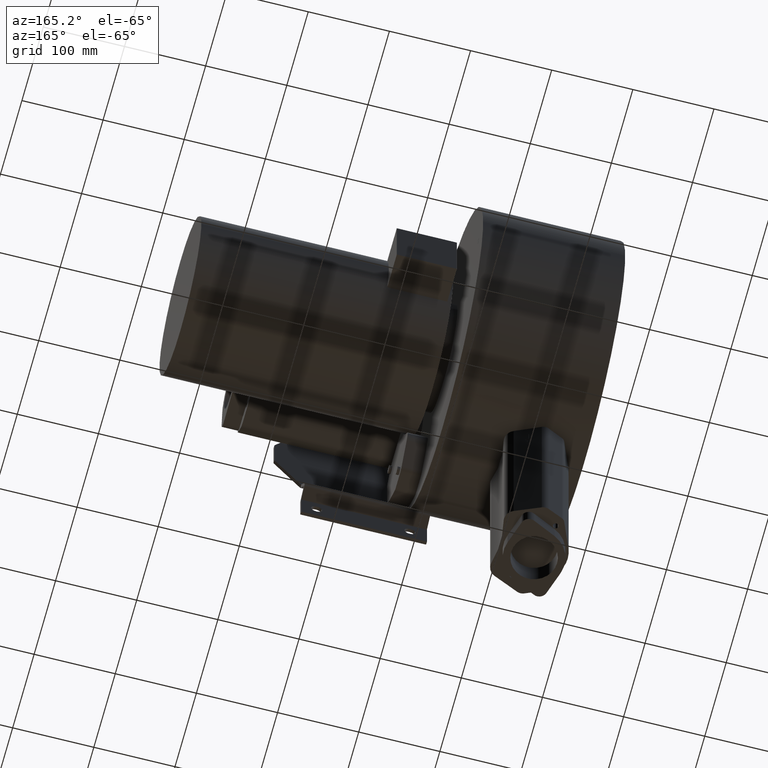
[diagram: clean part render]
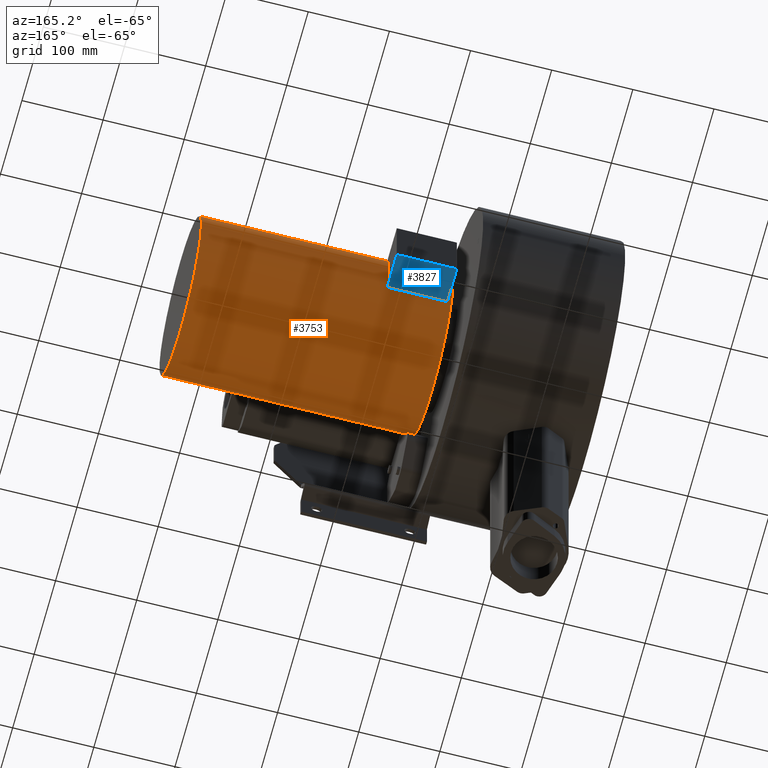
[diagram: same view with the hole feature highlighted: cylindrical wall and planar end face, labeled with their STEP entity ids]
A machine part, auxiliary view. The highlighted faces form one hole feature of diameter 195.5 mm: the cylindrical wall (entity #3753, orange) and its adjacent planar end face (entity #3827, blue) — they share a circular edge in the B-rep.
Wall:
#3686=CARTESIAN_POINT('',(499.00000000000006,1.197092E-014,-97.75));
#3687=VERTEX_POINT('',#3686);
#3688=CARTESIAN_POINT('',(499.00000000000006,0.0,0.0));
#3689=DIRECTION('',(-1.0,0.0,0.0));
#3690=DIRECTION('',(0.0,0.0,1.0));
#3691=AXIS2_PLACEMENT_3D('',#3688,#3689,#3690);
#3692=CIRCLE('',#3691,97.75);
#3693=EDGE_CURVE('',#3687,#3687,#3692,.T.);
#3698=CARTESIAN_POINT('',(189.0,0.0,0.0));
#3699=DIRECTION('',(1.0,0.0,0.0));
#3700=DIRECTION('',(0.0,0.0,1.0));
#3701=AXIS2_PLACEMENT_3D('',#3698,#3699,#3700);
#3702=CYLINDRICAL_SURFACE('',#3701,97.75);
#3703=ORIENTED_EDGE('',*,*,#3693,.T.);
#3704=EDGE_LOOP('',(#3703));
#3705=FACE_OUTER_BOUND('',#3704,.T.);
#3706=CARTESIAN_POINT('',(268.0,90.476861682973961,-37.0));
#3707=VERTEX_POINT('',#3706);
#3708=CARTESIAN_POINT('',(268.0,90.476861682973961,37.0));
#3709=VERTEX_POINT('',#3708);
#3710=CARTESIAN_POINT('',(268.0,0.0,0.0));
#3711=DIRECTION('',(1.0,0.0,0.0));
#3712=DIRECTION('',(0.0,0.0,1.0));
#3713=AXIS2_PLACEMENT_3D('',#3710,#3711,#3712);
#3714=CIRCLE('',#3713,97.75);
#3715=EDGE_CURVE('',#3707,#3709,#3714,.T.);
#3716=ORIENTED_EDGE('',*,*,#3715,.T.);
#3717=CARTESIAN_POINT('',(194.0,90.476861682973961,37.0));
#3718=VERTEX_POINT('',#3717);
#3719=CARTESIAN_POINT('',(268.0,90.476861682973961,37.0));
#3720=DIRECTION('',(-1.0,0.0,0.0));
#3721=VECTOR('',#3720,74.0);
#3722=LINE('',#3719,#3721);
#3723=EDGE_CURVE('',#3709,#3718,#3722,.T.);
#3724=ORIENTED_EDGE('',*,*,#3723,.T.);
#3725=CARTESIAN_POINT('',(194.0,90.476861682973961,-37.0));
#3726=VERTEX_POINT('',#3725);
#3727=CARTESIAN_POINT('',(194.0,0.0,0.0));
#3728=DIRECTION('',(-1.0,0.0,0.0));
#3729=DIRECTION('',(0.0,0.0,1.0));
#3730=AXIS2_PLACEMENT_3D('',#3727,#3728,#3729);
#3731=CIRCLE('',#3730,97.75);
#3732=EDGE_CURVE('',#3718,#3726,#3731,.T.);
#3733=ORIENTED_EDGE('',*,*,#3732,.T.);
#3734=CARTESIAN_POINT('',(194.0,90.476861682973961,-37.0));
#3735=DIRECTION('',(1.0,0.0,0.0));
#3736=VECTOR('',#3735,74.0);
#3737=LINE('',#3734,#3736);
#3738=EDGE_CURVE('',#3726,#3707,#3737,.T.);
#3739=ORIENTED_EDGE('',*,*,#3738,.T.);
#3740=EDGE_LOOP('',(#3716,#3724,#3733,#3739));
#3741=FACE_BOUND('',#3740,.T.);
#3742=CARTESIAN_POINT('',(189.0,1.197092E-014,-97.75));
#3743=VERTEX_POINT('',#3742);
#3744=CARTESIAN_POINT('',(189.0,0.0,0.0));
#3745=DIRECTION('',(-1.0,0.0,0.0));
#3746=DIRECTION('',(0.0,0.0,1.0));
#3747=AXIS2_PLACEMENT_3D('',#3744,#3745,#3746);
#3748=CIRCLE('',#3747,97.75);
#3749=EDGE_CURVE('',#3743,#3743,#3748,.T.);
#3750=ORIENTED_EDGE('',*,*,#3749,.F.);
#3751=EDGE_LOOP('',(#3750));
#3752=FACE_BOUND('',#3751,.T.);
#3753=ADVANCED_FACE('',(#3705,#3741,#3752),#3702,.T.);
End face:
#3706=CARTESIAN_POINT('',(268.0,90.476861682973961,-37.0));
#3707=VERTEX_POINT('',#3706);
#3725=CARTESIAN_POINT('',(194.0,90.476861682973961,-37.0));
#3726=VERTEX_POINT('',#3725);
#3734=CARTESIAN_POINT('',(194.0,90.476861682973961,-37.0));
#3735=DIRECTION('',(1.0,0.0,0.0));
#3736=VECTOR('',#3735,74.0);
#3737=LINE('',#3734,#3736);
#3738=EDGE_CURVE('',#3726,#3707,#3737,.T.);
#3771=CARTESIAN_POINT('',(268.0,135.0,-37.0));
#3772=VERTEX_POINT('',#3771);
#3781=CARTESIAN_POINT('',(194.0,135.0,-37.0));
#3782=VERTEX_POINT('',#3781);
#3783=CARTESIAN_POINT('',(193.99999999999997,135.0,-37.0));
#3784=DIRECTION('',(1.0,0.0,0.0));
#3785=VECTOR('',#3784,74.000000000000028);
#3786=LINE('',#3783,#3785);
#3787=EDGE_CURVE('',#3782,#3772,#3786,.T.);
#3806=CARTESIAN_POINT('',(194.0,0.0,-37.0));
#3807=DIRECTION('',(0.0,0.0,-1.0));
#3808=DIRECTION('',(-1.0,0.0,0.0));
#3809=AXIS2_PLACEMENT_3D('',#3806,#3807,#3808);
#3810=PLANE('',#3809);
#3811=ORIENTED_EDGE('',*,*,#3738,.F.);
#3812=CARTESIAN_POINT('',(194.0,90.476861682973961,-37.0));
#3813=DIRECTION('',(0.0,1.0,0.0));
#3814=VECTOR('',#3813,44.523138317026039);
#3815=LINE('',#3812,#3814);
#3816=EDGE_CURVE('',#3726,#3782,#3815,.T.);
#3817=ORIENTED_EDGE('',*,*,#3816,.T.);
#3818=ORIENTED_EDGE('',*,*,#3787,.T.);
#3819=CARTESIAN_POINT('',(268.0,90.476861682973961,-37.0));
#3820=DIRECTION('',(0.0,1.0,0.0));
#3821=VECTOR('',#3820,44.523138317026039);
#3822=LINE('',#3819,#3821);
#3823=EDGE_CURVE('',#3707,#3772,#3822,.T.);
#3824=ORIENTED_EDGE('',*,*,#3823,.F.);
#3825=EDGE_LOOP('',(#3811,#3817,#3818,#3824));
#3826=FACE_OUTER_BOUND('',#3825,.T.);
#3827=ADVANCED_FACE('',(#3826),#3810,.T.);